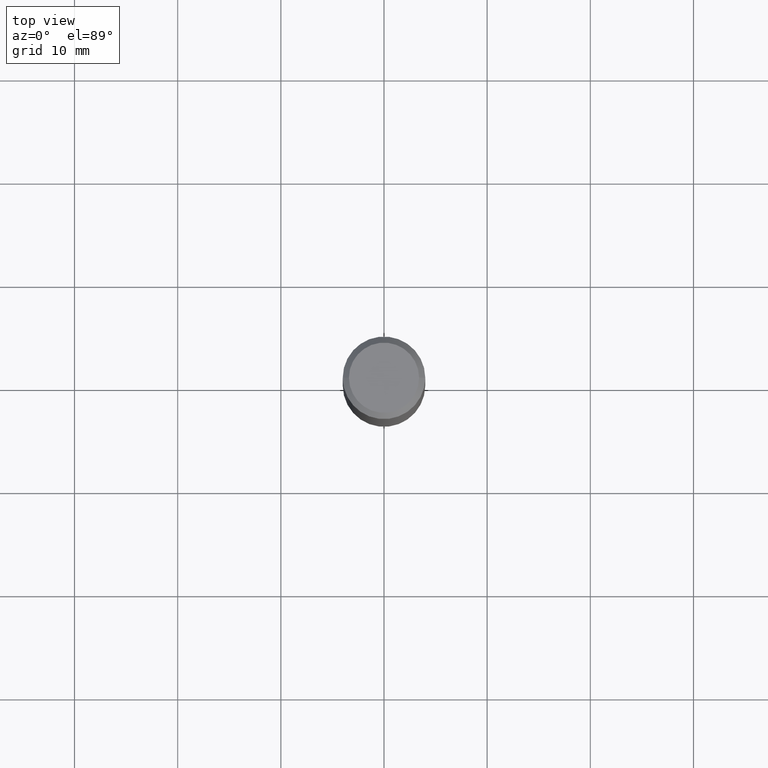
[diagram: clean part render]
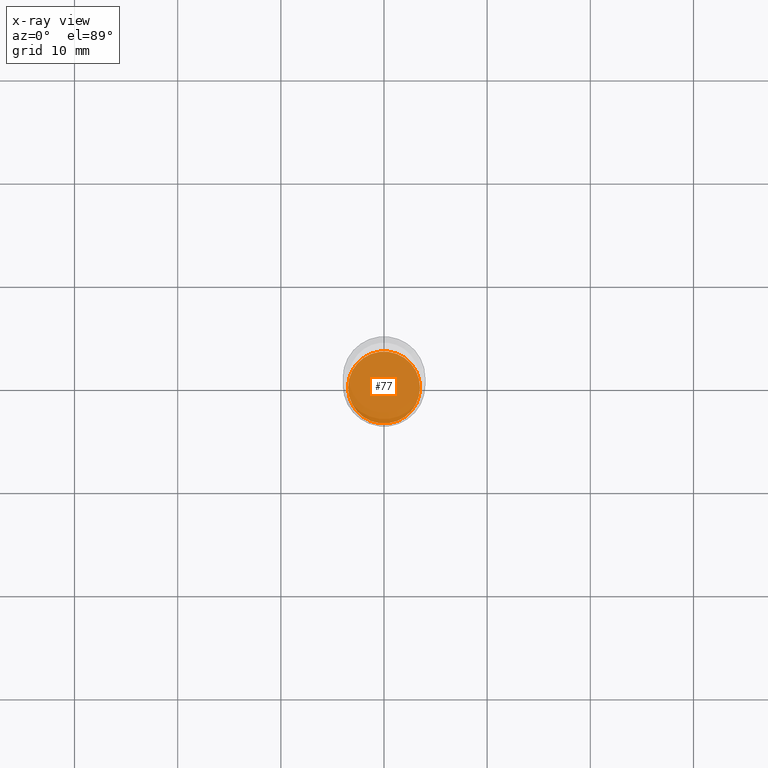
[diagram: x-ray — body ghosted, one internal face saturated and labeled with its STEP entity id]
A machine part, top view, then the same camera in x-ray: the body is ghosted and one INTERNAL B-rep face — a face not visible from any outside direction — is saturated and labeled: STEP entity #77.
In plain terms, the highlighted planar face has unit normal (-0, 0, 1).
Its self-contained STEP definition (entity closure, byte-faithful):
#26 = DIRECTION ( 'NONE',  ( 1.000000000000000000, -6.982962677686269866E-15, 0.000000000000000000 ) ) ;
#77 = ADVANCED_FACE ( 'NONE', ( #194 ), #99, .F. ) ;
#89 = DIRECTION ( 'NONE',  ( 1.000000000000000000, -6.982962677686265922E-15, 4.876176775795935793E-29 ) ) ;
#94 = DIRECTION ( 'NONE',  ( -2.438088387897960049E-29, 3.491481338843145188E-15, 1.000000000000000000 ) ) ;
#99 = PLANE ( 'NONE',  #324 ) ;
#112 = EDGE_CURVE ( 'NONE', #160, #256, #232, .T. ) ;
#150 = EDGE_CURVE ( 'NONE', #256, #160, #342, .T. ) ;
#160 = VERTEX_POINT ( 'NONE', #389 ) ;
#179 = AXIS2_PLACEMENT_3D ( 'NONE', #353, #427, #26 ) ;
#194 = FACE_OUTER_BOUND ( 'NONE', #461, .T. ) ;
#212 = AXIS2_PLACEMENT_3D ( 'NONE', #463, #355, #271 ) ;
#232 = CIRCLE ( 'NONE', #179, 0.1373000000000000054 ) ;
#256 = VERTEX_POINT ( 'NONE', #392 ) ;
#271 = DIRECTION ( 'NONE',  ( 1.000000000000000000, -6.982962677686269866E-15, 0.000000000000000000 ) ) ;
#324 = AXIS2_PLACEMENT_3D ( 'NONE', #418, #94, #89 ) ;
#342 = CIRCLE ( 'NONE', #212, 0.1373000000000000054 ) ;
#344 = ORIENTED_EDGE ( 'NONE', *, *, #112, .F. ) ;
#353 = CARTESIAN_POINT ( 'NONE',  ( 5.313759168959684125E-29, -7.586639801172272343E-15, -2.172900000000000276 ) ) ;
#355 = DIRECTION ( 'NONE',  ( -2.445468806185136597E-29, 3.491481338843145583E-15, 1.000000000000000000 ) ) ;
#356 = ORIENTED_EDGE ( 'NONE', *, *, #150, .F. ) ;
#389 = CARTESIAN_POINT ( 'NONE',  ( 0.1373000000000000054, -8.545400576818596813E-15, -2.172900000000000276 ) ) ;
#392 = CARTESIAN_POINT ( 'NONE',  ( -0.1373000000000000054, -6.608415397799542957E-15, -2.172900000000000276 ) ) ;
#418 = CARTESIAN_POINT ( 'NONE',  ( 2.294742895181703316E-29, -1.191004293695746922E-14, -2.172900000000000276 ) ) ;
#427 = DIRECTION ( 'NONE',  ( -2.445468806185136597E-29, 3.491481338843145583E-15, 1.000000000000000000 ) ) ;
#461 = EDGE_LOOP ( 'NONE', ( #344, #356 ) ) ;
#463 = CARTESIAN_POINT ( 'NONE',  ( 5.313759168959684125E-29, -7.586639801172272343E-15, -2.172900000000000276 ) ) ;